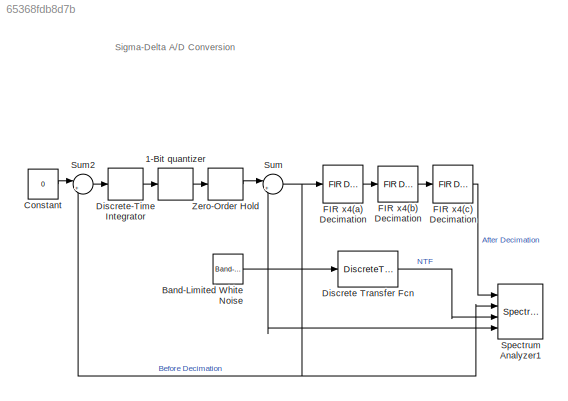
MODEL slx_65368fdb8d7b
KIND model
CONFIG AbsTol = 1e-6
CONFIG FixedStep = auto
CONFIG MaxStep = 1/512000
CONFIG MinStep = auto
CONFIG RelTol = 1e-3
CONFIG SampleTimeConstraint = Unconstrained
CONFIG Solver = ode5
CONFIG SolverMode = SingleTasking
CONFIG SolverName = ode5
CONFIG StartTime = 0.0
CONFIG StopTime = 0.1
BLOCK [Signum] 1-Bit quantizer
BLOCK [Reference] Band-Limited White Noise  REF=simulink/Sources/Band-Limited
White Noise
  Ports = [0, 1]
  SourceBlock = simulink/Sources/Band-Limited\nWhite Noise
  SourceType = Band-Limited White Noise.
BLOCK [Constant] Constant
  Value = 0
BLOCK [DiscreteTransferFcn] Discrete Transfer Fcn
  Denominator = [1 0]
  InputPortMap = u0
  Numerator = [1 -1]
  Ports = [1, 1]
BLOCK [DiscreteIntegrator] Discrete-Time Integrator
  ICPrevOutput = DiscIntNeverNeededParam
  ICPrevScaledInput = DiscIntNeverNeededParam
  InitialConditionSetting = State (most efficient)
  Ports = [1, 1]
  SampleTime = 1/512000
BLOCK [Reference] FIR x4(a) Decimation  REF=dspmlti4/FIR
Decimation
  Ports = [1, 1]
  SourceBlock = dspmlti4/FIR\nDecimation
  SourceType = FIR Decimation
  UserDataPersistent = on
BLOCK [Reference] FIR x4(b) Decimation  REF=dspmlti4/FIR
Decimation
  Ports = [1, 1]
  SourceBlock = dspmlti4/FIR\nDecimation
  SourceType = FIR Decimation
  UserDataPersistent = on
BLOCK [Reference] FIR x4(c) Decimation  REF=dspmlti4/FIR
Decimation
  Ports = [1, 1]
  SourceBlock = dspmlti4/FIR\nDecimation
  SourceType = FIR Decimation
  UserDataPersistent = on
BLOCK [SpectrumAnalyzer] Spectrum Analyzer1
  NumInputPorts = 4
  Ports = [4]
  ScopeSpecificationString = spbscopes.SpectrumAnalyzerBlockCfg('CurrentConfiguration', extmgr.ConfigurationSet(extmgr.Configuration('Core','General UI',true),extmgr.Configuration('Core','Source UI',true),extmgr.Configuration('Sources','WiredSimulink',true),extmgr.Configuration('Sources','Simulink',false),extmgr.Configuration('Sources','SimulinkEvent',false),extmgr.Configuration('Sources','File',false),extmgr.Configuration('S...<+3084ch>
BLOCK [Sum] Sum
  IconShape = round
  InputSameDT = off
  Inputs = |++
  OutDataTypeStr = Inherit: Inherit via internal rule
  Ports = [2, 1]
  SaturateOnIntegerOverflow = off
BLOCK [Sum] Sum2
  IconShape = round
  InputSameDT = off
  Inputs = |+-
  OutDataTypeStr = Inherit: Inherit via internal rule
  Ports = [2, 1]
  SaturateOnIntegerOverflow = off
BLOCK [ZeroOrderHold] Zero-Order Hold
  SampleTime = 1/512000
ANNOTATION (root): Sigma-Delta A/D Conversion
LINE 1-Bit quantizer:1 -> Zero-Order Hold:1
NET Band-Limited White Noise:1 -> Discrete Transfer Fcn:1, Spectrum Analyzer1:4, Sum:2
LINE Constant:1 -> Sum2:1
LINE Discrete Transfer Fcn:1 -> Spectrum Analyzer1:3
LINE Discrete-Time Integrator:1 -> 1-Bit quantizer:1
LINE FIR x4(a) Decimation:1 -> FIR x4(b) Decimation:1
LINE FIR x4(b) Decimation:1 -> FIR x4(c) Decimation:1
LINE FIR x4(c) Decimation:1 -> Spectrum Analyzer1:1
LINE Sum2:1 -> Discrete-Time Integrator:1
NET Sum:1 -> FIR x4(a) Decimation:1, Spectrum Analyzer1:2, Sum2:2
LINE Zero-Order Hold:1 -> Sum:1
note: NET lines group one-source signal fan-out (src -> all destinations, sorted); 1:1 wires keep LINE
